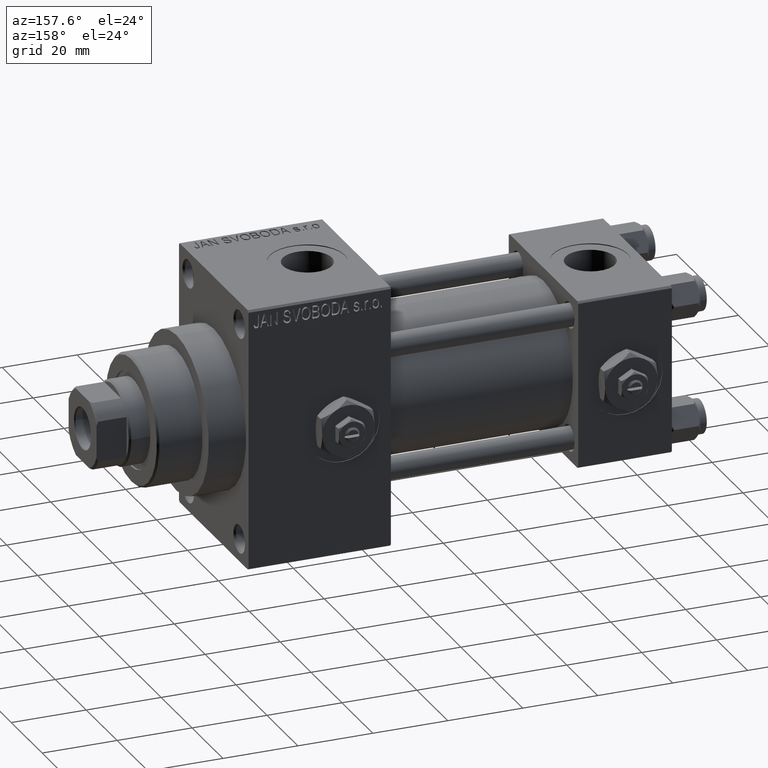
[diagram: clean part render]
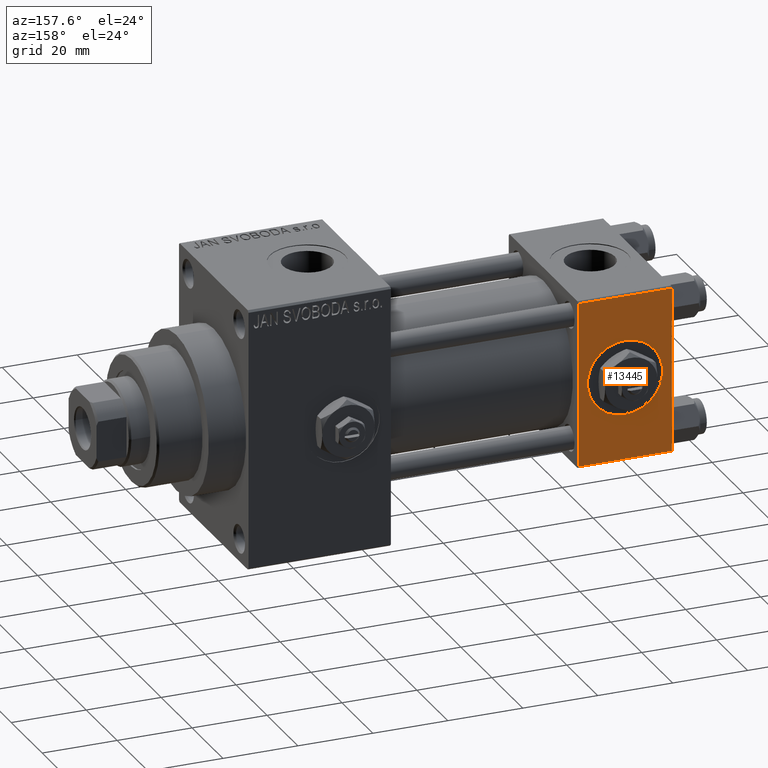
[diagram: same view with one face highlighted and labeled with its STEP entity id]
A machine part, auxiliary view. The second image highlights one B-rep face of the part: STEP entity #13445.
In plain terms, the highlighted planar face has unit normal (0, 1, 0).
Its self-contained STEP definition (entity closure, byte-faithful):
#607 = EDGE_CURVE ( 'NONE', #25737, #15637, #28183, .T. ) ;
#1288 = EDGE_CURVE ( 'NONE', #31013, #23390, #31667, .T. ) ;
#1582 = DIRECTION ( 'NONE',  ( 0.000000000000000000, -0.000000000000000000, 1.000000000000000000 ) ) ;
#1835 = PLANE ( 'NONE',  #32752 ) ;
#2552 = CARTESIAN_POINT ( 'NONE',  ( 12.50000000000000000, 22.50000000000000000, 9.999999999999996447 ) ) ;
#3500 = AXIS2_PLACEMENT_3D ( 'NONE', #27107, #19402, #19882 ) ;
#4075 = VECTOR ( 'NONE', #37555, 1000.000000000000000 ) ;
#4127 = ORIENTED_EDGE ( 'NONE', *, *, #43097, .F. ) ;
#4198 = CARTESIAN_POINT ( 'NONE',  ( 12.50000000000000178, 22.50000000000000000, -9.999999999999996447 ) ) ;
#4302 = DIRECTION ( 'NONE',  ( 0.000000000000000000, 1.000000000000000000, 0.000000000000000000 ) ) ;
#6568 = ORIENTED_EDGE ( 'NONE', *, *, #35774, .F. ) ;
#8814 = EDGE_LOOP ( 'NONE', ( #32038, #39660, #6568, #48205 ) ) ;
#10207 = LINE ( 'NONE', #33553, #32136 ) ;
#12144 = VECTOR ( 'NONE', #42650, 1000.000000000000000 ) ;
#13445 = ADVANCED_FACE ( 'NONE', ( #43555, #28652 ), #1835, .T. ) ;
#14234 = EDGE_CURVE ( 'NONE', #31492, #25737, #15571, .T. ) ;
#15571 = LINE ( 'NONE', #27487, #12144 ) ;
#15637 = VERTEX_POINT ( 'NONE', #34110 ) ;
#19402 = DIRECTION ( 'NONE',  ( 0.000000000000000000, 1.000000000000000000, 0.000000000000000000 ) ) ;
#19882 = DIRECTION ( 'NONE',  ( 0.000000000000000000, 0.000000000000000000, 1.000000000000000000 ) ) ;
#23390 = VERTEX_POINT ( 'NONE', #4198 ) ;
#24469 = CARTESIAN_POINT ( 'NONE',  ( 25.00000000000000000, 22.50000000000000000, 21.99999999999999645 ) ) ;
#24906 = CIRCLE ( 'NONE', #3500, 9.999999999999996447 ) ;
#25340 = DIRECTION ( 'NONE',  ( 1.000000000000000000, 0.000000000000000000, 0.000000000000000000 ) ) ;
#25737 = VERTEX_POINT ( 'NONE', #45467 ) ;
#26861 = CARTESIAN_POINT ( 'NONE',  ( 0.000000000000000000, 22.50000000000000000, 22.50000000000000355 ) ) ;
#26886 = AXIS2_PLACEMENT_3D ( 'NONE', #38574, #4302, #31140 ) ;
#27107 = CARTESIAN_POINT ( 'NONE',  ( 12.50000000000000000, 22.50000000000000000, 0.000000000000000000 ) ) ;
#27487 = CARTESIAN_POINT ( 'NONE',  ( 25.00000000000000000, 22.50000000000000000, 22.50000000000000355 ) ) ;
#27847 = CARTESIAN_POINT ( 'NONE',  ( 0.000000000000000000, 22.50000000000000000, 21.99999999999999645 ) ) ;
#27937 = DIRECTION ( 'NONE',  ( -1.000000000000000000, 0.000000000000000000, 0.000000000000000000 ) ) ;
#28183 = LINE ( 'NONE', #46807, #43502 ) ;
#28652 = FACE_OUTER_BOUND ( 'NONE', #8814, .T. ) ;
#31013 = VERTEX_POINT ( 'NONE', #2552 ) ;
#31140 = DIRECTION ( 'NONE',  ( 0.000000000000000000, 0.000000000000000000, 1.000000000000000000 ) ) ;
#31492 = VERTEX_POINT ( 'NONE', #24469 ) ;
#31667 = CIRCLE ( 'NONE', #26886, 9.999999999999996447 ) ;
#31905 = CARTESIAN_POINT ( 'NONE',  ( 25.00000000000000000, 22.50000000000000000, 22.50000000000000355 ) ) ;
#32038 = ORIENTED_EDGE ( 'NONE', *, *, #14234, .T. ) ;
#32136 = VECTOR ( 'NONE', #25340, 1000.000000000000000 ) ;
#32752 = AXIS2_PLACEMENT_3D ( 'NONE', #31905, #47038, #1582 ) ;
#33553 = CARTESIAN_POINT ( 'NONE',  ( 25.00000000000000000, 22.50000000000000000, 21.99999999999999645 ) ) ;
#34110 = CARTESIAN_POINT ( 'NONE',  ( 0.000000000000000000, 22.50000000000000000, -21.99999999999996803 ) ) ;
#35774 = EDGE_CURVE ( 'NONE', #48890, #15637, #37799, .T. ) ;
#37555 = DIRECTION ( 'NONE',  ( 0.000000000000000000, 0.000000000000000000, -1.000000000000000000 ) ) ;
#37799 = LINE ( 'NONE', #26861, #4075 ) ;
#38574 = CARTESIAN_POINT ( 'NONE',  ( 12.50000000000000000, 22.50000000000000000, 0.000000000000000000 ) ) ;
#39660 = ORIENTED_EDGE ( 'NONE', *, *, #607, .T. ) ;
#42650 = DIRECTION ( 'NONE',  ( 0.000000000000000000, 0.000000000000000000, -1.000000000000000000 ) ) ;
#43027 = EDGE_LOOP ( 'NONE', ( #48868, #4127 ) ) ;
#43097 = EDGE_CURVE ( 'NONE', #23390, #31013, #24906, .T. ) ;
#43502 = VECTOR ( 'NONE', #27937, 1000.000000000000000 ) ;
#43555 = FACE_BOUND ( 'NONE', #43027, .T. ) ;
#44037 = EDGE_CURVE ( 'NONE', #48890, #31492, #10207, .T. ) ;
#45467 = CARTESIAN_POINT ( 'NONE',  ( 25.00000000000000000, 22.50000000000000000, -21.99999999999996803 ) ) ;
#46807 = CARTESIAN_POINT ( 'NONE',  ( 25.00000000000000000, 22.50000000000000000, -21.99999999999998224 ) ) ;
#47038 = DIRECTION ( 'NONE',  ( -0.000000000000000000, 1.000000000000000000, 0.000000000000000000 ) ) ;
#48205 = ORIENTED_EDGE ( 'NONE', *, *, #44037, .T. ) ;
#48868 = ORIENTED_EDGE ( 'NONE', *, *, #1288, .F. ) ;
#48890 = VERTEX_POINT ( 'NONE', #27847 ) ;